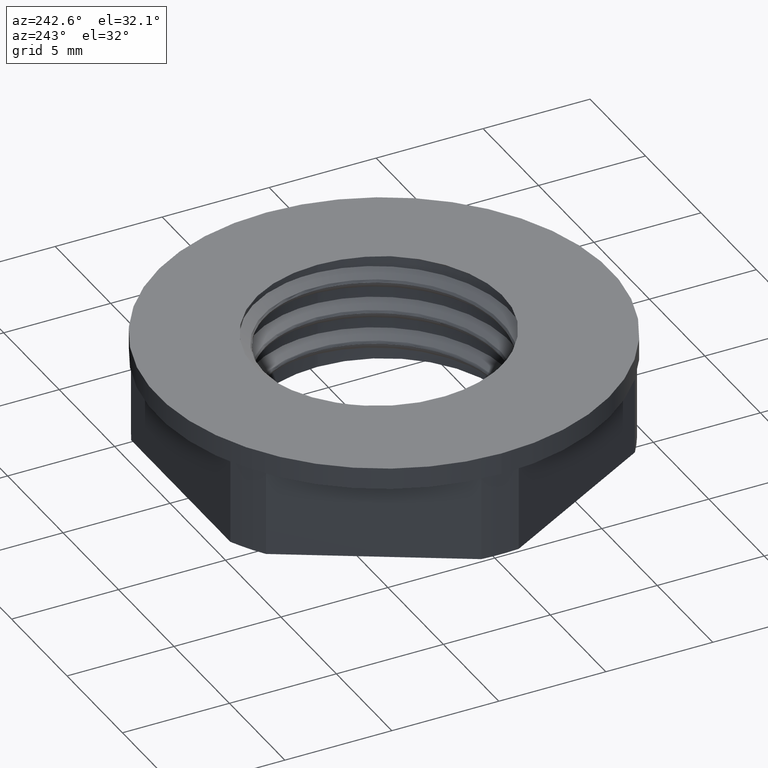
[diagram: clean part render]
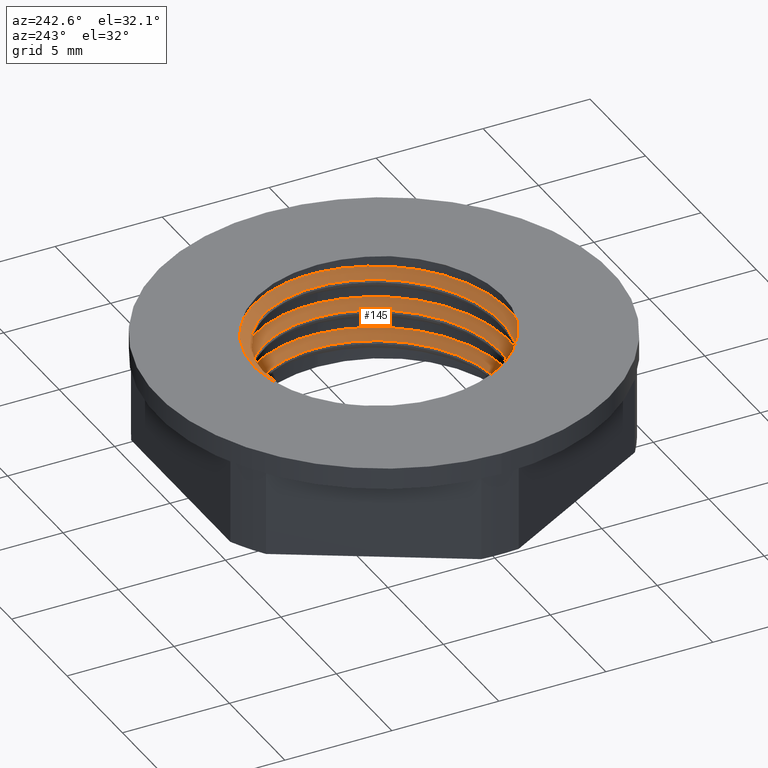
[diagram: same view with one face highlighted and labeled with its STEP entity id]
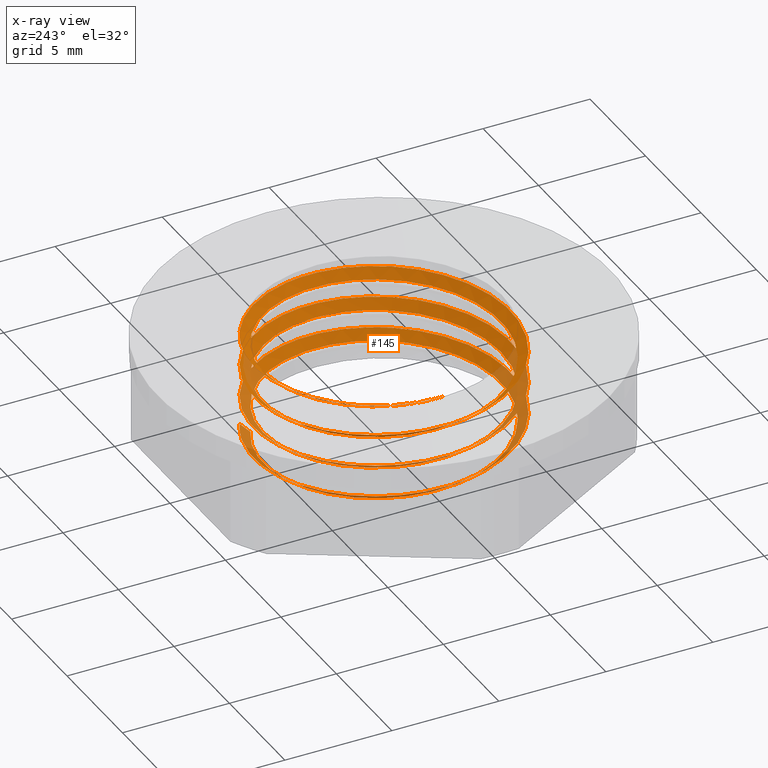
[diagram: x-ray of the same camera — body ghosted, the highlighted face saturated]
A machine part, auxiliary view. The second image highlights one B-rep face of the part: STEP entity #145.
The next image is the same camera in x-ray: the body ghosted, the highlighted face saturated — about 19% of this face is hidden behind the body in this view.
In plain terms, the highlighted face is a freeform B-spline surface patch.
Its self-contained STEP definition (entity closure, byte-faithful):
#70 = VECTOR ( 'NONE', #2163, 1000.000000000000100 ) ;
#145 = ADVANCED_FACE ( 'NONE', ( #1363 ), #2599, .F. ) ;
#156 = EDGE_CURVE ( 'NONE', #840, #837, #2605, .T. ) ;
#170 = EDGE_CURVE ( 'NONE', #834, #827, #2606, .T. ) ;
#179 = EDGE_CURVE ( 'NONE', #827, #824, #2610, .T. ) ;
#184 = EDGE_CURVE ( 'NONE', #883, #843, #1037, .T. ) ;
#185 = EDGE_CURVE ( 'NONE', #838, #831, #2600, .T. ) ;
#191 = EDGE_CURVE ( 'NONE', #837, #834, #2616, .T. ) ;
#193 = EDGE_CURVE ( 'NONE', #824, #883, #2160, .T. ) ;
#215 = EDGE_CURVE ( 'NONE', #831, #840, #2608, .T. ) ;
#217 = EDGE_CURVE ( 'NONE', #833, #893, #1036, .T. ) ;
#228 = EDGE_CURVE ( 'NONE', #893, #838, #2602, .T. ) ;
#235 = EDGE_CURVE ( 'NONE', #843, #833, #2594, .T. ) ;
#312 = EDGE_LOOP ( 'NONE', ( #894, #954, #935, #864, #876, #970, #915, #949, #950, #965, #940 ) ) ;
#824 = VERTEX_POINT ( 'NONE', #1223 ) ;
#827 = VERTEX_POINT ( 'NONE', #1267 ) ;
#831 = VERTEX_POINT ( 'NONE', #1240 ) ;
#833 = VERTEX_POINT ( 'NONE', #1274 ) ;
#834 = VERTEX_POINT ( 'NONE', #1232 ) ;
#837 = VERTEX_POINT ( 'NONE', #1269 ) ;
#838 = VERTEX_POINT ( 'NONE', #1255 ) ;
#840 = VERTEX_POINT ( 'NONE', #1225 ) ;
#843 = VERTEX_POINT ( 'NONE', #1271 ) ;
#864 = ORIENTED_EDGE ( 'NONE', *, *, #193, .F. ) ;
#876 = ORIENTED_EDGE ( 'NONE', *, *, #179, .F. ) ;
#883 = VERTEX_POINT ( 'NONE', #1262 ) ;
#893 = VERTEX_POINT ( 'NONE', #1292 ) ;
#894 = ORIENTED_EDGE ( 'NONE', *, *, #217, .F. ) ;
#915 = ORIENTED_EDGE ( 'NONE', *, *, #191, .F. ) ;
#935 = ORIENTED_EDGE ( 'NONE', *, *, #184, .F. ) ;
#940 = ORIENTED_EDGE ( 'NONE', *, *, #228, .F. ) ;
#949 = ORIENTED_EDGE ( 'NONE', *, *, #156, .F. ) ;
#950 = ORIENTED_EDGE ( 'NONE', *, *, #215, .F. ) ;
#954 = ORIENTED_EDGE ( 'NONE', *, *, #235, .F. ) ;
#965 = ORIENTED_EDGE ( 'NONE', *, *, #185, .F. ) ;
#970 = ORIENTED_EDGE ( 'NONE', *, *, #170, .F. ) ;
#1036 = B_SPLINE_CURVE_WITH_KNOTS ( 'NONE', 3,
 ( #2340, #2317, #2343, #2344, #2347, #2324, #2325, #2308, #2312, #2333, #2345, #2348, #2320, #2313, #2332, #2316, #2326, #2361, #2310, #2354, #2329, #2318, #2349, #2346 ),
 .UNSPECIFIED., .F., .F.,
 ( 4, 2, 2, 2, 2, 2, 2, 2, 2, 2, 2, 4 ),
 ( 0.0000000000000000000, 0.001129553514951776900, 0.001694330272427665700, 0.002259107029903553800, 0.003388660544855331400, 0.003953437302331219700, 0.004518214059807107600, 0.005647767574758880000, 0.006777321089710651400, 0.007342097847186538500, 0.007906874604662425500, 0.009036428119614197900 ),
 .UNSPECIFIED. ) ;
#1037 = B_SPLINE_CURVE_WITH_KNOTS ( 'NONE', 3,
 ( #2102, #2120, #2141, #2130 ),
 .UNSPECIFIED., .F., .F.,
 ( 4, 4 ),
 ( 5.276005131831191400E-047, 4.298832152000615600E-007 ),
 .UNSPECIFIED. ) ;
#1108 = CARTESIAN_POINT ( 'NONE',  ( -5.364382293212693200, -1.437245306775670500, 2.062482500777301100 ) ) ;
#1110 = CARTESIAN_POINT ( 'NONE',  ( 0.7845116428169338600, 5.959643699663614000, 0.09374275125636930000 ) ) ;
#1115 = CARTESIAN_POINT ( 'NONE',  ( -4.809476999057354300, 2.776905193758121300, 0.3749825007773035000 ) ) ;
#1116 = CARTESIAN_POINT ( 'NONE',  ( 3.659245206378451100, -4.769055794689133000, 1.031232500777302700 ) ) ;
#1117 = CARTESIAN_POINT ( 'NONE',  ( -4.769055794689130300, -3.659245206378452900, 2.156232500777300700 ) ) ;
#1120 = CARTESIAN_POINT ( 'NONE',  ( -2.776905193758121300, -4.809476999057354300, 2.249982500777301100 ) ) ;
#1121 = CARTESIAN_POINT ( 'NONE',  ( -0.7847545928271130200, -5.959708791736255200, 2.343732500777301100 ) ) ;
#1126 = CARTESIAN_POINT ( 'NONE',  ( 0.7847545928271111300, 5.959708791736255200, 1.593732500777301600 ) ) ;
#1127 = CARTESIAN_POINT ( 'NONE',  ( 1.437245306775670100, -5.364382293212693200, 2.437482500777300700 ) ) ;
#1128 = CARTESIAN_POINT ( 'NONE',  ( 3.659245206378451100, -4.769055794689133000, 2.531232500777300200 ) ) ;
#1129 = CARTESIAN_POINT ( 'NONE',  ( 4.769055794689133000, 3.659245206378450600, 1.406232500777302000 ) ) ;
#1131 = CARTESIAN_POINT ( 'NONE',  ( 4.809476999057353400, -2.776905193758121700, 2.624982500777300200 ) ) ;
#1132 = CARTESIAN_POINT ( 'NONE',  ( 5.959708791736255200, -0.7847545928271099100, 2.718732500777300700 ) ) ;
#1138 = CARTESIAN_POINT ( 'NONE',  ( -5.364382293212693200, -1.437245306775670500, 0.5624825007773033300 ) ) ;
#1140 = CARTESIAN_POINT ( 'NONE',  ( 4.809476999057353400, -2.776905193758121700, 1.124982500777302400 ) ) ;
#1141 = CARTESIAN_POINT ( 'NONE',  ( 5.364382293212693200, 1.437245306775669600, 1.312482500777302200 ) ) ;
#1143 = CARTESIAN_POINT ( 'NONE',  ( 2.776905193758120800, 4.809476999057354300, 1.499982500777302000 ) ) ;
#1145 = CARTESIAN_POINT ( 'NONE',  ( 2.776533339817862400, 4.809691681642640000, 0.0000000000000000000 ) ) ;
#1148 = CARTESIAN_POINT ( 'NONE',  ( -1.437245306775670500, 5.364382293212693200, 0.1874825007773038000 ) ) ;
#1151 = CARTESIAN_POINT ( 'NONE',  ( 1.437245306775670100, -5.364382293212693200, 0.9374825007773027700 ) ) ;
#1153 = CARTESIAN_POINT ( 'NONE',  ( -1.437245306775670500, 5.364382293212693200, 1.687482500777301800 ) ) ;
#1154 = CARTESIAN_POINT ( 'NONE',  ( -3.659245206378452900, 4.769055794689130300, 1.781232500777301800 ) ) ;
#1156 = CARTESIAN_POINT ( 'NONE',  ( -4.809476999057354300, 2.776905193758121300, 1.874982500777301300 ) ) ;
#1157 = CARTESIAN_POINT ( 'NONE',  ( -3.659245206378452900, 4.769055794689130300, 0.2812325007773036600 ) ) ;
#1159 = CARTESIAN_POINT ( 'NONE',  ( -5.959708791736255200, 0.7847545928271116900, 1.968732500777301600 ) ) ;
#1160 = CARTESIAN_POINT ( 'NONE',  ( -4.769055794689130300, -3.659245206378452900, 0.6562325007773032200 ) ) ;
#1161 = CARTESIAN_POINT ( 'NONE',  ( -2.776905193758121300, -4.809476999057354300, 0.7499825007773030000 ) ) ;
#1162 = CARTESIAN_POINT ( 'NONE',  ( 5.959708791736255200, -0.7847545928271099100, 1.218732500777302400 ) ) ;
#1163 = CARTESIAN_POINT ( 'NONE',  ( -5.959708791736255200, 0.7847545928271116900, 0.4687325007773034400 ) ) ;
#1164 = CARTESIAN_POINT ( 'NONE',  ( -0.7847545928271130200, -5.959708791736255200, 0.8437325007773027700 ) ) ;
#1166 = CARTESIAN_POINT ( 'NONE',  ( 4.809476999057353400, -2.776905193758121700, 4.124982500777298000 ) ) ;
#1171 = CARTESIAN_POINT ( 'NONE',  ( 4.769055794689133000, 3.659245206378450600, 4.406232500777298000 ) ) ;
#1173 = CARTESIAN_POINT ( 'NONE',  ( 2.776905193758120800, 4.809476999057354300, 2.999982500777299800 ) ) ;
#1174 = CARTESIAN_POINT ( 'NONE',  ( -0.7847545928271130200, -5.959708791736255200, 3.843732500777298900 ) ) ;
#1175 = CARTESIAN_POINT ( 'NONE',  ( -4.809476999057354300, 2.776905193758121300, 3.374982500777299300 ) ) ;
#1178 = CARTESIAN_POINT ( 'NONE',  ( 2.776905193758120800, 4.809476999057354300, 4.499982500777298000 ) ) ;
#1182 = CARTESIAN_POINT ( 'NONE',  ( 1.437245306775670100, -5.364382293212693200, 3.937482500777298900 ) ) ;
#1183 = CARTESIAN_POINT ( 'NONE',  ( -5.553557827898206500, 0.01633743471645050400, 5.000000000000000900 ) ) ;
#1184 = CARTESIAN_POINT ( 'NONE',  ( -1.437245306775670500, 5.364382293212693200, 3.187482500777299800 ) ) ;
#1185 = CARTESIAN_POINT ( 'NONE',  ( 5.364382293212693200, 1.437245306775669600, 4.312482500777297100 ) ) ;
#1186 = CARTESIAN_POINT ( 'NONE',  ( 4.769055794689133000, 3.659245206378450600, 2.906232500777299800 ) ) ;
#1188 = CARTESIAN_POINT ( 'NONE',  ( 0.7847545928271111300, 5.959708791736255200, 3.093732500777299300 ) ) ;
#1189 = CARTESIAN_POINT ( 'NONE',  ( -5.549205763440566500, 1.495727685127602700, 4.935274323784042000 ) ) ;
#1191 = CARTESIAN_POINT ( 'NONE',  ( -3.659245206378452900, 4.769055794689130300, 3.281232500777299800 ) ) ;
#1192 = CARTESIAN_POINT ( 'NONE',  ( -5.364382293212693200, -1.437245306775670500, 3.562482500777298900 ) ) ;
#1193 = CARTESIAN_POINT ( 'NONE',  ( -4.769055794689130300, -3.659245206378452900, 3.656232500777298900 ) ) ;
#1194 = CARTESIAN_POINT ( 'NONE',  ( -4.809476999057354300, 2.776905193758121300, 4.874982500777297100 ) ) ;
#1197 = CARTESIAN_POINT ( 'NONE',  ( -5.959708791736255200, 0.7847545928271116900, 3.468732500777299800 ) ) ;
#1202 = CARTESIAN_POINT ( 'NONE',  ( 0.7847545928271111300, 5.959708791736255200, 4.593732500777298000 ) ) ;
#1204 = CARTESIAN_POINT ( 'NONE',  ( -1.437245306775670500, 5.364382293212693200, 4.687482500777298000 ) ) ;
#1207 = CARTESIAN_POINT ( 'NONE',  ( -2.776905193758121300, -4.809476999057354300, 3.749982500777298900 ) ) ;
#1211 = CARTESIAN_POINT ( 'NONE',  ( 5.364382293212693200, 1.437245306775669600, 2.812482500777300200 ) ) ;
#1212 = CARTESIAN_POINT ( 'NONE',  ( 5.959708791736255200, -0.7847545928271099100, 4.218732500777298000 ) ) ;
#1214 = CARTESIAN_POINT ( 'NONE',  ( 3.659245206378451100, -4.769055794689133000, 4.031232500777298000 ) ) ;
#1215 = CARTESIAN_POINT ( 'NONE',  ( -3.659245206378452900, 4.769055794689130300, 4.781232500777297100 ) ) ;
#1223 = CARTESIAN_POINT ( 'NONE',  ( 3.000123449500724500, 5.196081147148867700, 0.3745717986213496500 ) ) ;
#1225 = CARTESIAN_POINT ( 'NONE',  ( 6.000000000000001800, -3.703513641187310800E-015, 3.125303948206179100 ) ) ;
#1232 = CARTESIAN_POINT ( 'NONE',  ( 6.000000000000000900, -1.122276860965852100E-016, 1.625303948206181300 ) ) ;
#1240 = CARTESIAN_POINT ( 'NONE',  ( -6.000000000000001800, -3.254602896800970600E-015, 3.875303948206178600 ) ) ;
#1255 = CARTESIAN_POINT ( 'NONE',  ( 6.000000000000000900, -1.122276860965852100E-016, 4.625303948206176400 ) ) ;
#1262 = CARTESIAN_POINT ( 'NONE',  ( 2.776915621567964000, 4.809495059562877400, 1.084202172485504400E-016 ) ) ;
#1267 = CARTESIAN_POINT ( 'NONE',  ( -6.000000000000000900, 3.366830582897556400E-016, 0.8753039482061825100 ) ) ;
#1269 = CARTESIAN_POINT ( 'NONE',  ( -6.000000000000001800, 3.815741327283896400E-015, 2.375303948206180400 ) ) ;
#1271 = CARTESIAN_POINT ( 'NONE',  ( 2.776533339817862400, 4.809691681642640000, 0.0000000000000000000 ) ) ;
#1274 = CARTESIAN_POINT ( 'NONE',  ( -5.553557827898206500, 0.01633743471645050400, 5.000000000000000900 ) ) ;
#1292 = CARTESIAN_POINT ( 'NONE',  ( 0.007507861181075936600, 5.999995302666538200, 5.000000000000000000 ) ) ;
#1337 = CARTESIAN_POINT ( 'NONE',  ( 3.119555498731400300, 5.402932175054450800, 2.074994328188025400 ) ) ;
#1338 = CARTESIAN_POINT ( 'NONE',  ( -6.695094371204562300, 0.8815877152418814000, 1.043744328188027200 ) ) ;
#1339 = CARTESIAN_POINT ( 'NONE',  ( 0.8815877152418809500, 6.695094371204562300, 3.668744328188023700 ) ) ;
#1343 = CARTESIAN_POINT ( 'NONE',  ( 3.119555498731400300, 5.402932175054450800, 0.5749943281880278700 ) ) ;
#1345 = CARTESIAN_POINT ( 'NONE',  ( 0.8815877152418809500, 6.695094371204562300, 2.168744328188025400 ) ) ;
#1348 = CARTESIAN_POINT ( 'NONE',  ( 5.357523282220921800, 4.110769978904337500, 1.981244328188025900 ) ) ;
#1350 = CARTESIAN_POINT ( 'NONE',  ( -0.8815877152418832900, -6.695094371204563200, 2.918744328188025000 ) ) ;
#1351 = CARTESIAN_POINT ( 'NONE',  ( -5.402932175054450800, 3.119555498731400700, 2.449994328188025000 ) ) ;
#1352 = CARTESIAN_POINT ( 'NONE',  ( 1.614591131831228900, -6.026308826712741200, 3.012494328188024500 ) ) ;
#1355 = CARTESIAN_POINT ( 'NONE',  ( -1.614591131831228900, 6.026308826712741200, 0.7624943281880276500 ) ) ;
#1356 = CARTESIAN_POINT ( 'NONE',  ( 6.026308826712741200, 1.614591131831228000, 1.887494328188026100 ) ) ;
#1357 = CARTESIAN_POINT ( 'NONE',  ( -5.402932175054450800, 3.119555498731400700, 0.9499943281880273100 ) ) ;
#1362 = CARTESIAN_POINT ( 'NONE',  ( -5.357523282220919100, -4.110769978904339300, 1.231244328188027000 ) ) ;
#1363 = FACE_OUTER_BOUND ( 'NONE', #312, .T. ) ;
#1364 = CARTESIAN_POINT ( 'NONE',  ( 0.8815877152418809500, 6.695094371204562300, 0.6687443281880278700 ) ) ;
#1365 = CARTESIAN_POINT ( 'NONE',  ( -6.026308826712741200, -1.614591131831228900, 1.137494328188027000 ) ) ;
#1366 = CARTESIAN_POINT ( 'NONE',  ( -3.119555498731401100, -5.402932175054450800, 1.324994328188026800 ) ) ;
#1367 = CARTESIAN_POINT ( 'NONE',  ( 6.000000000000000900, 0.7898424761968219100, 4.657277292087394800 ) ) ;
#1368 = CARTESIAN_POINT ( 'NONE',  ( -0.8815877152418832900, -6.695094371204563200, 1.418744328188027000 ) ) ;
#1369 = CARTESIAN_POINT ( 'NONE',  ( 1.614591131831228900, -6.026308826712741200, 1.512494328188026500 ) ) ;
#1370 = CARTESIAN_POINT ( 'NONE',  ( 5.402932175054449900, -3.119555498731401100, 1.699994328188026300 ) ) ;
#1371 = CARTESIAN_POINT ( 'NONE',  ( -1.614591131831228900, 6.026308826712741200, 2.262494328188025900 ) ) ;
#1373 = CARTESIAN_POINT ( 'NONE',  ( 4.110769978904338400, -5.357523282220920900, 3.106244328188024500 ) ) ;
#1374 = CARTESIAN_POINT ( 'NONE',  ( -4.110769978904339300, 5.357523282220919100, 2.356244328188025400 ) ) ;
#1375 = CARTESIAN_POINT ( 'NONE',  ( 5.402932175054449900, -3.119555498731401100, 3.199994328188024100 ) ) ;
#1376 = CARTESIAN_POINT ( 'NONE',  ( -6.026308826712741200, -1.614591131831228900, 2.637494328188025000 ) ) ;
#1377 = CARTESIAN_POINT ( 'NONE',  ( 6.695094371204562300, -0.8815877152418797300, 3.293744328188024500 ) ) ;
#1378 = CARTESIAN_POINT ( 'NONE',  ( 6.026308826712741200, 1.614591131831228000, 3.387494328188024100 ) ) ;
#1379 = CARTESIAN_POINT ( 'NONE',  ( 4.110769978904338400, -5.357523282220920900, 1.606244328188026300 ) ) ;
#1381 = CARTESIAN_POINT ( 'NONE',  ( -5.357523282220919100, -4.110769978904339300, 2.731244328188024500 ) ) ;
#1387 = CARTESIAN_POINT ( 'NONE',  ( -4.110769978904339300, 5.357523282220919100, 0.8562443281880274300 ) ) ;
#1388 = CARTESIAN_POINT ( 'NONE',  ( 6.695094371204562300, -0.8815877152418797300, 1.793744328188026300 ) ) ;
#1389 = CARTESIAN_POINT ( 'NONE',  ( -6.695094371204562300, 0.8815877152418814000, 2.543744328188024500 ) ) ;
#1390 = CARTESIAN_POINT ( 'NONE',  ( 5.357523282220921800, 4.110769978904337500, 3.481244328188023200 ) ) ;
#1391 = CARTESIAN_POINT ( 'NONE',  ( 3.119555498731400300, 5.402932175054450800, 3.574994328188023200 ) ) ;
#1392 = CARTESIAN_POINT ( 'NONE',  ( -3.119555498731401100, -5.402932175054450800, 2.824994328188024500 ) ) ;
#1393 = CARTESIAN_POINT ( 'NONE',  ( -1.614591131831228900, 6.026308826712741200, 6.762494328188019200 ) ) ;
#1394 = CARTESIAN_POINT ( 'NONE',  ( 4.809476999057353400, -2.776905193758121700, 1.124982500777302400 ) ) ;
#1395 = CARTESIAN_POINT ( 'NONE',  ( -4.110769978904339300, 5.357523282220919100, 3.856244328188022800 ) ) ;
#1396 = CARTESIAN_POINT ( 'NONE',  ( 5.959708791736254300, -0.7847545928271100200, 1.218732500777302200 ) ) ;
#1397 = CARTESIAN_POINT ( 'NONE',  ( 6.026308826712741200, 1.614591131831228000, 4.887494328188021000 ) ) ;
#1398 = CARTESIAN_POINT ( 'NONE',  ( 5.402932175054449900, -3.119555498731401100, 7.699994328188017400 ) ) ;
#1399 = CARTESIAN_POINT ( 'NONE',  ( 5.364382293212693200, 1.437245306775669600, 1.312482500777302200 ) ) ;
#1400 = CARTESIAN_POINT ( 'NONE',  ( 4.769055794689133000, 3.659245206378450200, 1.406232500777302200 ) ) ;
#1401 = CARTESIAN_POINT ( 'NONE',  ( 2.776905193758120800, 4.809476999057354300, 1.499982500777302000 ) ) ;
#1402 = CARTESIAN_POINT ( 'NONE',  ( 6.026308826712741200, 1.614591131831228000, 6.387494328188019200 ) ) ;
#1403 = CARTESIAN_POINT ( 'NONE',  ( -5.402932175054450800, 3.119555498731400700, 6.949994328188018300 ) ) ;
#1404 = CARTESIAN_POINT ( 'NONE',  ( -6.026308826712741200, -1.614591131831228900, 7.137494328188017400 ) ) ;
#1405 = CARTESIAN_POINT ( 'NONE',  ( 5.357523282220921800, 4.110769978904337500, 6.481244328188018300 ) ) ;
#1406 = CARTESIAN_POINT ( 'NONE',  ( 3.119555498731400300, 5.402932175054450800, 6.574994328188019200 ) ) ;
#1407 = CARTESIAN_POINT ( 'NONE',  ( -5.357523282220919100, -4.110769978904339300, 7.231244328188018300 ) ) ;
#1408 = CARTESIAN_POINT ( 'NONE',  ( -3.119555498731401100, -5.402932175054450800, 5.824994328188020100 ) ) ;
#1409 = CARTESIAN_POINT ( 'NONE',  ( 4.110769978904338400, -5.357523282220920900, 7.606244328188017400 ) ) ;
#1410 = CARTESIAN_POINT ( 'NONE',  ( 3.119555498731400300, 5.402932175054450800, 8.074994328188017400 ) ) ;
#1411 = CARTESIAN_POINT ( 'NONE',  ( 2.776905193758120800, 4.809476999057354300, -1.749922269592462100E-005 ) ) ;
#1412 = CARTESIAN_POINT ( 'NONE',  ( -3.119555498731401100, -5.402932175054450800, 4.324994328188021900 ) ) ;
#1413 = CARTESIAN_POINT ( 'NONE',  ( -0.8815877152418832900, -6.695094371204563200, 7.418744328188017400 ) ) ;
#1414 = CARTESIAN_POINT ( 'NONE',  ( -4.809476999057354300, 2.776905193758121300, 0.3749825007773035000 ) ) ;
#1415 = CARTESIAN_POINT ( 'NONE',  ( -0.7847545928271130200, -5.959708791736255200, 0.8437325007773027700 ) ) ;
#1416 = CARTESIAN_POINT ( 'NONE',  ( 3.659245206378450600, -4.769055794689132100, 1.031232500777302700 ) ) ;
#1417 = CARTESIAN_POINT ( 'NONE',  ( -5.402932175054450800, 3.119555498731400700, 3.949994328188022800 ) ) ;
#1418 = CARTESIAN_POINT ( 'NONE',  ( -0.8815877152418832900, -6.695094371204563200, 4.418744328188023700 ) ) ;
#1419 = CARTESIAN_POINT ( 'NONE',  ( -5.357523282220919100, -4.110769978904339300, 5.731244328188020100 ) ) ;
#1420 = CARTESIAN_POINT ( 'NONE',  ( -5.402932175054450800, 3.119555498731400700, 5.449994328188021000 ) ) ;
#1421 = CARTESIAN_POINT ( 'NONE',  ( 0.8815877152418809500, 6.695094371204562300, 6.668744328188019200 ) ) ;
#1422 = CARTESIAN_POINT ( 'NONE',  ( -6.695094371204562300, 0.8815877152418814000, 7.043744328188018300 ) ) ;
#1423 = CARTESIAN_POINT ( 'NONE',  ( 0.7847545928271111300, 5.959708791736255200, 0.09373250077730395400 ) ) ;
#1424 = CARTESIAN_POINT ( 'NONE',  ( 5.357523282220921800, 4.110769978904337500, 4.981244328188021900 ) ) ;
#1425 = CARTESIAN_POINT ( 'NONE',  ( -1.437245306775670500, 5.364382293212693200, 0.1874825007773038000 ) ) ;
#1426 = CARTESIAN_POINT ( 'NONE',  ( 1.437245306775670100, -5.364382293212693200, 0.9374825007773027700 ) ) ;
#1427 = CARTESIAN_POINT ( 'NONE',  ( -3.659245206378452900, 4.769055794689130300, 0.2812325007773036600 ) ) ;
#1428 = CARTESIAN_POINT ( 'NONE',  ( 1.614591131831228900, -6.026308826712741200, 4.512494328188022800 ) ) ;
#1429 = CARTESIAN_POINT ( 'NONE',  ( -6.026308826712741200, -1.614591131831228900, 4.137494328188022800 ) ) ;
#1430 = CARTESIAN_POINT ( 'NONE',  ( -6.026308826712741200, -1.614591131831228900, 5.637494328188020100 ) ) ;
#1431 = CARTESIAN_POINT ( 'NONE',  ( -5.357523282220919100, -4.110769978904339300, 4.231244328188023700 ) ) ;
#1432 = CARTESIAN_POINT ( 'NONE',  ( -0.8815877152418832900, -6.695094371204563200, 5.918744328188020100 ) ) ;
#1433 = CARTESIAN_POINT ( 'NONE',  ( 1.614591131831228900, -6.026308826712741200, 6.012494328188020100 ) ) ;
#1434 = CARTESIAN_POINT ( 'NONE',  ( 3.119555498731400300, 5.402932175054450800, 5.074994328188021000 ) ) ;
#1435 = CARTESIAN_POINT ( 'NONE',  ( 4.110769978904338400, -5.357523282220920900, 4.606244328188021900 ) ) ;
#1436 = CARTESIAN_POINT ( 'NONE',  ( 0.8815877152418809500, 6.695094371204562300, 5.168744328188021900 ) ) ;
#1437 = CARTESIAN_POINT ( 'NONE',  ( 6.695094371204562300, -0.8815877152418797300, 6.293744328188019200 ) ) ;
#1438 = CARTESIAN_POINT ( 'NONE',  ( -4.110769978904339300, 5.357523282220919100, 6.856244328188018300 ) ) ;
#1439 = CARTESIAN_POINT ( 'NONE',  ( -6.695094371204562300, 0.8815877152418814000, 5.543744328188021000 ) ) ;
#1440 = CARTESIAN_POINT ( 'NONE',  ( 1.614591131831228900, -6.026308826712741200, 7.512494328188018300 ) ) ;
#1441 = CARTESIAN_POINT ( 'NONE',  ( -5.959708791736254300, 0.7847545928271115700, 0.4687325007773034400 ) ) ;
#1442 = CARTESIAN_POINT ( 'NONE',  ( 6.026308826712741200, 1.614591131831228000, 7.887494328188016500 ) ) ;
#1443 = CARTESIAN_POINT ( 'NONE',  ( -5.364382293212693200, -1.437245306775670500, 0.5624825007773033300 ) ) ;
#1444 = CARTESIAN_POINT ( 'NONE',  ( 6.695094371204562300, -0.8815877152418797300, 4.793744328188021900 ) ) ;
#1445 = CARTESIAN_POINT ( 'NONE',  ( -1.614591131831228900, 6.026308826712741200, 5.262494328188021000 ) ) ;
#1446 = CARTESIAN_POINT ( 'NONE',  ( -1.614591131831228900, 6.026308826712741200, 3.762494328188023700 ) ) ;
#1447 = CARTESIAN_POINT ( 'NONE',  ( -4.110769978904339300, 5.357523282220919100, 5.356244328188020100 ) ) ;
#1448 = CARTESIAN_POINT ( 'NONE',  ( -6.695094371204562300, 0.8815877152418814000, 4.043744328188022800 ) ) ;
#1449 = CARTESIAN_POINT ( 'NONE',  ( 5.357523282220921800, 4.110769978904337500, 7.981244328188017400 ) ) ;
#1450 = CARTESIAN_POINT ( 'NONE',  ( -4.769055794689130300, -3.659245206378452900, 0.6562325007773032200 ) ) ;
#1451 = CARTESIAN_POINT ( 'NONE',  ( 5.402932175054449900, -3.119555498731401100, 6.199994328188019200 ) ) ;
#1452 = CARTESIAN_POINT ( 'NONE',  ( 5.402932175054449900, -3.119555498731401100, 4.699994328188021900 ) ) ;
#1453 = CARTESIAN_POINT ( 'NONE',  ( 4.110769978904338400, -5.357523282220920900, 6.106244328188020100 ) ) ;
#1454 = CARTESIAN_POINT ( 'NONE',  ( 6.695094371204562300, -0.8815877152418797300, 7.793744328188018300 ) ) ;
#1455 = CARTESIAN_POINT ( 'NONE',  ( -2.776905193758121300, -4.809476999057354300, 0.7499825007773030000 ) ) ;
#1456 = CARTESIAN_POINT ( 'NONE',  ( -3.119555498731401100, -5.402932175054450800, 7.324994328188018300 ) ) ;
#1457 = CARTESIAN_POINT ( 'NONE',  ( 4.769055794689133000, 3.659245206378450200, 4.406232500777297100 ) ) ;
#1458 = CARTESIAN_POINT ( 'NONE',  ( 5.959708791736254300, -0.7847545928271100200, 7.218732500777295300 ) ) ;
#1459 = CARTESIAN_POINT ( 'NONE',  ( -1.437245306775670500, 5.364382293212693200, 1.687482500777301800 ) ) ;
#1460 = CARTESIAN_POINT ( 'NONE',  ( 5.364382293212693200, 1.437245306775669600, 7.312482500777293600 ) ) ;
#1461 = CARTESIAN_POINT ( 'NONE',  ( 3.659245206378450600, -4.769055794689132100, 2.531232500777300200 ) ) ;
#1462 = CARTESIAN_POINT ( 'NONE',  ( 0.7847545928271111300, 5.959708791736255200, 1.593732500777301800 ) ) ;
#1463 = CARTESIAN_POINT ( 'NONE',  ( -0.7847545928271130200, -5.959708791736255200, 5.343732500777297100 ) ) ;
#1464 = CARTESIAN_POINT ( 'NONE',  ( 4.769055794689133000, 3.659245206378450200, 7.406232500777292700 ) ) ;
#1465 = CARTESIAN_POINT ( 'NONE',  ( 2.776905193758120800, 4.809476999057354300, 7.499982500777293600 ) ) ;
#1466 = CARTESIAN_POINT ( 'NONE',  ( 3.659245206378450600, -4.769055794689132100, 4.031232500777298000 ) ) ;
#1467 = CARTESIAN_POINT ( 'NONE',  ( 0.7847545928271111300, 5.959708791736255200, 4.593732500777297100 ) ) ;
#1468 = CARTESIAN_POINT ( 'NONE',  ( -3.659245206378452900, 4.769055794689130300, 4.781232500777297100 ) ) ;
#1469 = CARTESIAN_POINT ( 'NONE',  ( 4.809476999057353400, -2.776905193758121700, 4.124982500777298000 ) ) ;
#1470 = CARTESIAN_POINT ( 'NONE',  ( 5.959708791736254300, -0.7847545928271100200, 4.218732500777298000 ) ) ;
#1471 = CARTESIAN_POINT ( 'NONE',  ( -4.809476999057354300, 2.776905193758121300, 4.874982500777297100 ) ) ;
#1472 = CARTESIAN_POINT ( 'NONE',  ( -5.959708791736254300, 0.7847545928271115700, 3.468732500777300200 ) ) ;
#1473 = CARTESIAN_POINT ( 'NONE',  ( -2.776905193758121300, -4.809476999057354300, 5.249982500777296200 ) ) ;
#1474 = CARTESIAN_POINT ( 'NONE',  ( 5.959708791736254300, -0.7847545928271100200, 5.718732500777295300 ) ) ;
#1475 = CARTESIAN_POINT ( 'NONE',  ( 0.7847545928271111300, 5.959708791736255200, 6.093732500777295300 ) ) ;
#1476 = CARTESIAN_POINT ( 'NONE',  ( -5.959708791736254300, 0.7847545928271115700, 1.968732500777301600 ) ) ;
#1477 = CARTESIAN_POINT ( 'NONE',  ( -5.364382293212693200, -1.437245306775670500, 5.062482500777296200 ) ) ;
#1478 = CARTESIAN_POINT ( 'NONE',  ( -3.659245206378452900, 4.769055794689130300, 1.781232500777301800 ) ) ;
#1479 = CARTESIAN_POINT ( 'NONE',  ( -5.959708791736254300, 0.7847545928271115700, 6.468732500777296200 ) ) ;
#1480 = CARTESIAN_POINT ( 'NONE',  ( 1.437245306775670100, -5.364382293212693200, 6.937482500777294400 ) ) ;
#1481 = CARTESIAN_POINT ( 'NONE',  ( 4.809476999057353400, -2.776905193758121700, 7.124982500777293600 ) ) ;
#1482 = CARTESIAN_POINT ( 'NONE',  ( -5.364382293212693200, -1.437245306775670500, 2.062482500777301100 ) ) ;
#1483 = CARTESIAN_POINT ( 'NONE',  ( -4.809476999057354300, 2.776905193758121300, 3.374982500777299300 ) ) ;
#1484 = CARTESIAN_POINT ( 'NONE',  ( 0.7847545928271111300, 5.959708791736255200, 3.093732500777299300 ) ) ;
#1485 = CARTESIAN_POINT ( 'NONE',  ( 5.364382293212693200, 1.437245306775669600, 4.312482500777297100 ) ) ;
#1486 = CARTESIAN_POINT ( 'NONE',  ( -1.437245306775670500, 5.364382293212693200, 4.687482500777298000 ) ) ;
#1487 = CARTESIAN_POINT ( 'NONE',  ( 2.776905193758120800, 4.809476999057354300, 5.999982500777295300 ) ) ;
#1488 = CARTESIAN_POINT ( 'NONE',  ( 4.809476999057353400, -2.776905193758121700, 2.624982500777300200 ) ) ;
#1489 = CARTESIAN_POINT ( 'NONE',  ( -1.437245306775670500, 5.364382293212693200, 6.187482500777295300 ) ) ;
#1490 = CARTESIAN_POINT ( 'NONE',  ( -3.659245206378452900, 4.769055794689130300, 6.281232500777297100 ) ) ;
#1491 = CARTESIAN_POINT ( 'NONE',  ( -4.809476999057354300, 2.776905193758121300, 6.374982500777295300 ) ) ;
#1492 = CARTESIAN_POINT ( 'NONE',  ( -4.769055794689130300, -3.659245206378452900, 2.156232500777300700 ) ) ;
#1493 = CARTESIAN_POINT ( 'NONE',  ( -4.769055794689130300, -3.659245206378452900, 6.656232500777295300 ) ) ;
#1494 = CARTESIAN_POINT ( 'NONE',  ( -3.659245206378452900, 4.769055794689130300, 3.281232500777299800 ) ) ;
#1495 = CARTESIAN_POINT ( 'NONE',  ( -5.364382293212693200, -1.437245306775670500, 3.562482500777298900 ) ) ;
#1496 = CARTESIAN_POINT ( 'NONE',  ( -4.769055794689130300, -3.659245206378452900, 3.656232500777298400 ) ) ;
#1497 = CARTESIAN_POINT ( 'NONE',  ( 1.437245306775670100, -5.364382293212693200, 3.937482500777298900 ) ) ;
#1498 = CARTESIAN_POINT ( 'NONE',  ( 5.959708791736254300, -0.7847545928271100200, 2.718732500777300200 ) ) ;
#1499 = CARTESIAN_POINT ( 'NONE',  ( -2.776905193758121300, -4.809476999057354300, 2.249982500777301100 ) ) ;
#1500 = CARTESIAN_POINT ( 'NONE',  ( 5.364382293212693200, 1.437245306775669600, 2.812482500777300200 ) ) ;
#1501 = CARTESIAN_POINT ( 'NONE',  ( 2.776905193758120800, 4.809476999057354300, 4.499982500777298000 ) ) ;
#1502 = CARTESIAN_POINT ( 'NONE',  ( -4.769055794689130300, -3.659245206378452900, 5.156232500777296200 ) ) ;
#1503 = CARTESIAN_POINT ( 'NONE',  ( -1.437245306775670500, 5.364382293212693200, 3.187482500777299800 ) ) ;
#1504 = CARTESIAN_POINT ( 'NONE',  ( -5.364382293212693200, -1.437245306775670500, 6.562482500777294400 ) ) ;
#1505 = CARTESIAN_POINT ( 'NONE',  ( -2.776905193758121300, -4.809476999057354300, 6.749982500777294400 ) ) ;
#1506 = CARTESIAN_POINT ( 'NONE',  ( 3.659245206378450600, -4.769055794689132100, 5.531232500777295300 ) ) ;
#1507 = CARTESIAN_POINT ( 'NONE',  ( -0.7847545928271130200, -5.959708791736255200, 6.843732500777296200 ) ) ;
#1508 = CARTESIAN_POINT ( 'NONE',  ( 1.437245306775670100, -5.364382293212693200, 2.437482500777300700 ) ) ;
#1509 = CARTESIAN_POINT ( 'NONE',  ( 4.769055794689133000, 3.659245206378450200, 2.906232500777299800 ) ) ;
#1510 = CARTESIAN_POINT ( 'NONE',  ( 4.809476999057353400, -2.776905193758121700, 5.624982500777296200 ) ) ;
#1511 = CARTESIAN_POINT ( 'NONE',  ( 2.776905193758120800, 4.809476999057354300, 2.999982500777299800 ) ) ;
#1512 = CARTESIAN_POINT ( 'NONE',  ( 5.364382293212693200, 1.437245306775669600, 5.812482500777295300 ) ) ;
#1513 = CARTESIAN_POINT ( 'NONE',  ( 4.769055794689133000, 3.659245206378450200, 5.906232500777295300 ) ) ;
#1514 = CARTESIAN_POINT ( 'NONE',  ( 3.659245206378450600, -4.769055794689132100, 7.031232500777295300 ) ) ;
#1515 = CARTESIAN_POINT ( 'NONE',  ( -0.7847545928271130200, -5.959708791736255200, 3.843732500777298900 ) ) ;
#1516 = CARTESIAN_POINT ( 'NONE',  ( -0.7847545928271130200, -5.959708791736255200, 2.343732500777301100 ) ) ;
#1517 = CARTESIAN_POINT ( 'NONE',  ( -2.776905193758121300, -4.809476999057354300, 3.749982500777298900 ) ) ;
#1518 = CARTESIAN_POINT ( 'NONE',  ( -4.809476999057354300, 2.776905193758121300, 1.874982500777301300 ) ) ;
#1519 = CARTESIAN_POINT ( 'NONE',  ( 1.437245306775670100, -5.364382293212693200, 5.437482500777297100 ) ) ;
#1520 = CARTESIAN_POINT ( 'NONE',  ( -5.959708791736254300, 0.7847545928271115700, 4.968732500777297100 ) ) ;
#1573 = CARTESIAN_POINT ( 'NONE',  ( 6.000000000000000900, -1.122276860965852100E-016, 4.625303948206176400 ) ) ;
#1581 = CARTESIAN_POINT ( 'NONE',  ( -0.8478361671605156900, -6.438772968725622500, 2.718321798621347300 ) ) ;
#1587 = CARTESIAN_POINT ( 'NONE',  ( -6.000000000000000000, -0.7898424761968253500, 2.407277292087398400 ) ) ;
#1588 = CARTESIAN_POINT ( 'NONE',  ( -6.000000000000001800, 3.815741327283896400E-015, 2.375303948206180400 ) ) ;
#1600 = CARTESIAN_POINT ( 'NONE',  ( 5.196081147148866800, -3.000123449500725800, 2.999571798621345900 ) ) ;
#1601 = CARTESIAN_POINT ( 'NONE',  ( 6.000000000000001800, -3.703513641187310800E-015, 3.125303948206179100 ) ) ;
#1602 = CARTESIAN_POINT ( 'NONE',  ( 5.999999999999997300, -1.607771546170722900, 3.060220296620766300 ) ) ;
#1603 = CARTESIAN_POINT ( 'NONE',  ( 1.552776579205799300, -5.795591850283278400, 2.812071798621346400 ) ) ;
#1604 = CARTESIAN_POINT ( 'NONE',  ( -3.000123449500725800, -5.196081147148867700, 2.624571798621346400 ) ) ;
#1605 = CARTESIAN_POINT ( 'NONE',  ( 3.953389325572111500, -5.152410731840936900, 2.905821798621345900 ) ) ;
#1607 = CARTESIAN_POINT ( 'NONE',  ( -5.152410731840936000, -3.953389325572113300, 2.530821798621346800 ) ) ;
#1611 = CARTESIAN_POINT ( 'NONE',  ( -5.795591850283278400, -1.552776579205799700, 2.437071798621346800 ) ) ;
#1623 = CARTESIAN_POINT ( 'NONE',  ( 5.196081147148866800, -3.000123449500725800, 1.499571798621347900 ) ) ;
#1626 = CARTESIAN_POINT ( 'NONE',  ( -5.795591850283278400, -1.552776579205799700, 0.9370717986213490400 ) ) ;
#1637 = CARTESIAN_POINT ( 'NONE',  ( 6.000000000000000900, -1.122276860965852100E-016, 1.625303948206181300 ) ) ;
#1638 = CARTESIAN_POINT ( 'NONE',  ( 1.552776579205799300, -5.795591850283278400, 1.312071798621348200 ) ) ;
#1640 = CARTESIAN_POINT ( 'NONE',  ( -3.000123449500725800, -5.196081147148867700, 1.124571798621348800 ) ) ;
#1641 = CARTESIAN_POINT ( 'NONE',  ( -5.152410731840936000, -3.953389325572113300, 1.030821798621348600 ) ) ;
#1655 = CARTESIAN_POINT ( 'NONE',  ( 5.999999999999997300, -1.607771546170722900, 1.560220296620768600 ) ) ;
#1662 = CARTESIAN_POINT ( 'NONE',  ( 3.953389325572111500, -5.152410731840936900, 1.405821798621348200 ) ) ;
#1665 = CARTESIAN_POINT ( 'NONE',  ( -0.8478361671605156900, -6.438772968725622500, 1.218321798621348600 ) ) ;
#1666 = CARTESIAN_POINT ( 'NONE',  ( -6.000000000000000900, -0.7898424761968220200, 0.9072772920874002700 ) ) ;
#1670 = CARTESIAN_POINT ( 'NONE',  ( -6.000000000000000900, 3.366830582897556400E-016, 0.8753039482061824000 ) ) ;
#2099 = CARTESIAN_POINT ( 'NONE',  ( -3.953389325572113300, 5.152410731840936000, 0.6558217986213491500 ) ) ;
#2100 = CARTESIAN_POINT ( 'NONE',  ( -6.000000000000000900, 3.366830582897556400E-016, 0.8753039482061824000 ) ) ;
#2102 = CARTESIAN_POINT ( 'NONE',  ( 2.776915621567964000, 4.809495059562877400, 1.084202172485504400E-016 ) ) ;
#2108 = CARTESIAN_POINT ( 'NONE',  ( 6.000000000000000900, -1.122276860965852100E-016, 4.625303948206176400 ) ) ;
#2109 = CARTESIAN_POINT ( 'NONE',  ( 6.000000000000001800, -1.607771546170716500, 4.560220296620765400 ) ) ;
#2110 = CARTESIAN_POINT ( 'NONE',  ( 5.196081147148866800, -3.000123449500725800, 4.499571798621343700 ) ) ;
#2120 = CARTESIAN_POINT ( 'NONE',  ( 2.776788196908485300, 4.809560605292564800, 0.0000000000000000000 ) ) ;
#2122 = CARTESIAN_POINT ( 'NONE',  ( -5.196081147148867700, 3.000123449500725400, 0.7495717986213490400 ) ) ;
#2125 = CARTESIAN_POINT ( 'NONE',  ( -1.552776579205799700, 5.795591850283278400, 0.5620717986213492600 ) ) ;
#2126 = CARTESIAN_POINT ( 'NONE',  ( 3.953389325572111500, -5.152410731840936900, 4.405821798621343700 ) ) ;
#2127 = CARTESIAN_POINT ( 'NONE',  ( 3.000123449500724500, 5.196081147148867700, 0.3745717986213496500 ) ) ;
#2130 = CARTESIAN_POINT ( 'NONE',  ( 2.776533339817862400, 4.809691681642640000, 0.0000000000000000000 ) ) ;
#2132 = CARTESIAN_POINT ( 'NONE',  ( -3.000123449500725800, -5.196081147148867700, 4.124571798621344600 ) ) ;
#2133 = CARTESIAN_POINT ( 'NONE',  ( -5.152410731840936000, -3.953389325572113300, 4.030821798621343700 ) ) ;
#2134 = CARTESIAN_POINT ( 'NONE',  ( 0.8478361671605135800, 6.438772968725619900, 0.4683217986213495400 ) ) ;
#2135 = CARTESIAN_POINT ( 'NONE',  ( 1.552776579205799300, -5.795591850283278400, 4.312071798621344600 ) ) ;
#2136 = CARTESIAN_POINT ( 'NONE',  ( -0.8478361671605156900, -6.438772968725622500, 4.218321798621344600 ) ) ;
#2137 = CARTESIAN_POINT ( 'NONE',  ( -6.000000000000000000, -0.7898424761968253500, 3.907277292087395700 ) ) ;
#2141 = CARTESIAN_POINT ( 'NONE',  ( 2.776660769658253300, 4.809626145985921800, -9.483048167232647100E-018 ) ) ;
#2143 = CARTESIAN_POINT ( 'NONE',  ( -5.795591850283278400, -1.552776579205799700, 3.937071798621344600 ) ) ;
#2144 = CARTESIAN_POINT ( 'NONE',  ( -6.000000000000001800, -3.254602896800970600E-015, 3.875303948206178600 ) ) ;
#2147 = CARTESIAN_POINT ( 'NONE',  ( -6.000000000000002700, 1.607771546170717400, 0.8102202966207696600 ) ) ;
#2160 = LINE ( 'NONE', #2183, #70 ) ;
#2162 = CARTESIAN_POINT ( 'NONE',  ( -3.953389325572113300, 5.152410731840936000, 2.155821798621347300 ) ) ;
#2163 = DIRECTION ( 'NONE',  ( -0.3830379828601607800, -0.6634048481281116200, -0.6427876096865404700 ) ) ;
#2167 = CARTESIAN_POINT ( 'NONE',  ( -6.000000000000002700, 1.607771546170714000, 2.310220296620766800 ) ) ;
#2169 = CARTESIAN_POINT ( 'NONE',  ( 3.000123449500724500, 5.196081147148867700, 1.874571798621347500 ) ) ;
#2172 = CARTESIAN_POINT ( 'NONE',  ( -6.000000000000001800, 3.815741327283896400E-015, 2.375303948206180400 ) ) ;
#2175 = CARTESIAN_POINT ( 'NONE',  ( -1.552776579205799700, 5.795591850283278400, 2.062071798621347300 ) ) ;
#2176 = CARTESIAN_POINT ( 'NONE',  ( 6.000000000000003600, 0.7898424761968148000, 1.657277292087398800 ) ) ;
#2177 = CARTESIAN_POINT ( 'NONE',  ( -5.196081147148867700, 3.000123449500725400, 2.249571798621346800 ) ) ;
#2178 = CARTESIAN_POINT ( 'NONE',  ( 0.8478361671605135800, 6.438772968725619900, 1.968321798621347300 ) ) ;
#2179 = CARTESIAN_POINT ( 'NONE',  ( 6.000000000000000900, -1.122276860965852100E-016, 1.625303948206181300 ) ) ;
#2182 = CARTESIAN_POINT ( 'NONE',  ( 5.795591850283278400, 1.552776579205798600, 1.687071798621347700 ) ) ;
#2183 = CARTESIAN_POINT ( 'NONE',  ( 2.948230346244760500, 5.106204587055902500, 0.2874884144826659900 ) ) ;
#2191 = CARTESIAN_POINT ( 'NONE',  ( 5.152410731840937800, 3.953389325572110600, 1.780821798621347500 ) ) ;
#2308 = CARTESIAN_POINT ( 'NONE',  ( -5.074434064270246100, 2.599978610797270700, 5.000000000000000000 ) ) ;
#2309 = CARTESIAN_POINT ( 'NONE',  ( 5.795591850283278400, 1.552776579205798600, 3.187071798621345900 ) ) ;
#2310 = CARTESIAN_POINT ( 'NONE',  ( -1.838527202449845800, 5.621289321290688300, 5.000000000000004400 ) ) ;
#2312 = CARTESIAN_POINT ( 'NONE',  ( -4.907191010541856400, 2.937417565995394500, 4.999999999999999100 ) ) ;
#2313 = CARTESIAN_POINT ( 'NONE',  ( -3.757847684708440100, 4.434189621338467700, 4.999999999999997300 ) ) ;
#2316 = CARTESIAN_POINT ( 'NONE',  ( -2.854483048764709700, 5.128626861363518900, 5.000000000000000900 ) ) ;
#2317 = CARTESIAN_POINT ( 'NONE',  ( -5.572323291240419300, 0.3978148255538746500, 5.000000000000000900 ) ) ;
#2318 = CARTESIAN_POINT ( 'NONE',  ( -0.7427900104047396900, 5.929520422860843400, 4.999999999999994700 ) ) ;
#2320 = CARTESIAN_POINT ( 'NONE',  ( -4.144233313521716000, 4.021801028007352800, 4.999999999999998200 ) ) ;
#2322 = CARTESIAN_POINT ( 'NONE',  ( -5.196081147148867700, 3.000123449500725400, 3.749571798621345000 ) ) ;
#2324 = CARTESIAN_POINT ( 'NONE',  ( -5.330985666168688300, 1.885724345536443200, 5.000000000000005300 ) ) ;
#2325 = CARTESIAN_POINT ( 'NONE',  ( -5.273150621423580400, 2.068276418509574600, 4.999999999999999100 ) ) ;
#2326 = CARTESIAN_POINT ( 'NONE',  ( -2.527655337442559900, 5.317370073380659300, 5.000000000000004400 ) ) ;
#2327 = CARTESIAN_POINT ( 'NONE',  ( -3.953389325572113300, 5.152410731840936000, 3.655821798621345000 ) ) ;
#2329 = CARTESIAN_POINT ( 'NONE',  ( -1.295752403435729700, 5.797356160165704400, 4.999999999999995600 ) ) ;
#2331 = CARTESIAN_POINT ( 'NONE',  ( 6.000000000000003600, 0.7898424761968148000, 3.157277292087397000 ) ) ;
#2332 = CARTESIAN_POINT ( 'NONE',  ( -3.474545858630351700, 4.683453839340018000, 5.000000000000000000 ) ) ;
#2333 = CARTESIAN_POINT ( 'NONE',  ( -4.606994814981427500, 3.419411805695503800, 5.000000000000000900 ) ) ;
#2337 = CARTESIAN_POINT ( 'NONE',  ( -6.000000000000001800, -3.254602896800970600E-015, 3.875303948206178600 ) ) ;
#2338 = CARTESIAN_POINT ( 'NONE',  ( -6.000000000000002700, 1.607771546170714000, 3.810220296620765400 ) ) ;
#2339 = CARTESIAN_POINT ( 'NONE',  ( -1.552776579205799700, 5.795591850283278400, 3.562071798621345000 ) ) ;
#2340 = CARTESIAN_POINT ( 'NONE',  ( -5.553557827898206500, 0.01633743471645050400, 5.000000000000000900 ) ) ;
#2341 = CARTESIAN_POINT ( 'NONE',  ( 6.000000000000001800, -3.703513641187310800E-015, 3.125303948206179100 ) ) ;
#2342 = CARTESIAN_POINT ( 'NONE',  ( 0.8478361671605135800, 6.438772968725619900, 3.468321798621345500 ) ) ;
#2343 = CARTESIAN_POINT ( 'NONE',  ( -5.552031104211970100, 0.7746013350560578800, 4.999999999999999100 ) ) ;
#2344 = CARTESIAN_POINT ( 'NONE',  ( -5.465368358651734800, 1.333028458250944200, 5.000000000000000000 ) ) ;
#2345 = CARTESIAN_POINT ( 'NONE',  ( -4.497936556893391100, 3.576793473214872500, 5.000000000000000900 ) ) ;
#2346 = CARTESIAN_POINT ( 'NONE',  ( 0.007507861181075936600, 5.999995302666538200, 5.000000000000000000 ) ) ;
#2347 = CARTESIAN_POINT ( 'NONE',  ( -5.427035949345050600, 1.518036494961343600, 5.000000000000002700 ) ) ;
#2348 = CARTESIAN_POINT ( 'NONE',  ( -4.266553698276435800, 3.877875903866602400, 4.999999999999998200 ) ) ;
#2349 = CARTESIAN_POINT ( 'NONE',  ( -0.3697955896042902600, 5.982263273071422000, 4.999999999999999100 ) ) ;
#2350 = CARTESIAN_POINT ( 'NONE',  ( 5.152410731840937800, 3.953389325572110600, 3.280821798621345500 ) ) ;
#2354 = CARTESIAN_POINT ( 'NONE',  ( -1.479809668879213900, 5.744163397168411400, 5.000000000000003600 ) ) ;
#2358 = CARTESIAN_POINT ( 'NONE',  ( 3.000123449500724500, 5.196081147148867700, 3.374571798621345500 ) ) ;
#2361 = CARTESIAN_POINT ( 'NONE',  ( -2.013804911317853100, 5.551465658786722400, 5.000000000000004400 ) ) ;
#2365 = CARTESIAN_POINT ( 'NONE',  ( 0.007507861181075936600, 5.999995302666538200, 5.000000000000000000 ) ) ;
#2366 = CARTESIAN_POINT ( 'NONE',  ( 1.611255348355530500, 5.997988515511576000, 4.935068548079803100 ) ) ;
#2367 = CARTESIAN_POINT ( 'NONE',  ( 3.000123449500724500, 5.196081147148867700, 4.874571798621343700 ) ) ;
#2386 = CARTESIAN_POINT ( 'NONE',  ( 5.152410731840937800, 3.953389325572110600, 4.780821798621342800 ) ) ;
#2589 = CARTESIAN_POINT ( 'NONE',  ( 5.795591850283278400, 1.552776579205798600, 4.687071798621343700 ) ) ;
#2594 =( BOUNDED_CURVE ( )  B_SPLINE_CURVE ( 2, ( #1145, #1110, #1148, #1157, #1115, #1163, #1138, #1160, #1161, #1164, #1151, #1116, #1140, #1162, #1141, #1129, #1143, #1126, #1153, #1154, #1156, #1159, #1108, #1117, #1120, #1121, #1127, #1128, #1131, #1132, #1211, #1186, #1173, #1188, #1184, #1191, #1175, #1197, #1192, #1193, #1207, #1174, #1182, #1214, #1166, #1212, #1185, #1171, #1178, #1202, #1204, #1215, #1194, #1189, #1183 ),
 .UNSPECIFIED., .F., .T. ) 
 B_SPLINE_CURVE_WITH_KNOTS ( ( 3, 2, 2, 2, 2, 2, 2, 2, 2, 2, 2, 2, 2, 2, 2, 2, 2, 2, 2, 2, 2, 2, 2, 2, 2, 2, 2, 3 ),
 ( 2.525409767227689200E-006, 0.02499999999999999800, 0.05000000000000000300, 0.07499999999999999700, 0.1000000000000000100, 0.1250000000000000000, 0.1499999999999999900, 0.1749999999999999900, 0.2000000000000000100, 0.2250000000000000300, 0.2500000000000000000, 0.2750000000000000200, 0.2999999999999999900, 0.3250000000000000100, 0.3499999999999999800, 0.3750000000000000000, 0.4000000000000000800, 0.4250000000000000400, 0.4500000000000000100, 0.4749999999999999800, 0.5000000000000000000, 0.5250000000000000200, 0.5500000000000000400, 0.5749999999999999600, 0.5999999999999999800, 0.6250000000000000000, 0.6500000000000000200, 0.6665267933119190000 ),
 .UNSPECIFIED. ) 
 CURVE ( )  GEOMETRIC_REPRESENTATION_ITEM ( )  RATIONAL_B_SPLINE_CURVE ( ( 0.9999846227237473300, 0.9238872219261700100, 1.000000000000000000, 0.9238795325112867400, 1.000000000000000000, 0.9238795325112867400, 1.000000000000000000, 0.9238795325112867400, 1.000000000000000000, 0.9238795325112867400, 1.000000000000000000, 0.9238795325112867400, 1.000000000000000000, 0.9238795325112867400, 1.000000000000000000, 0.9238795325112867400, 1.000000000000000000, 0.9238795325112867400, 1.000000000000000000, 0.9238795325112867400, 1.000000000000000000, 0.9238795325112867400, 1.000000000000000000, 0.9238795325112867400, 1.000000000000000000, 0.9238795325112867400, 1.000000000000000000, 0.9238795325112867400, 1.000000000000000000, 0.9238795325112867400, 1.000000000000000000, 0.9238795325112867400, 1.000000000000000000, 0.9238795325112867400, 1.000000000000000000, 0.9238795325112867400, 1.000000000000000000, 0.9238795325112867400, 1.000000000000000000, 0.9238795325112867400, 1.000000000000000000, 0.9238795325112867400, 1.000000000000000000, 0.9238795325112867400, 1.000000000000000000, 0.9238795325112867400, 1.000000000000000000, 0.9238795325112867400, 1.000000000000000000, 0.9238795325112867400, 1.000000000000000000, 0.9238795325112867400, 1.000000000000000000, 0.9496789106802955300, 0.9658895207539803800 ) ) 
 REPRESENTATION_ITEM ( '' )  );
#2599 =( BOUNDED_SURFACE ( )  B_SPLINE_SURFACE ( 1, 2, ( 
 ( #1343, #1364, #1355, #1387, #1357, #1338, #1365, #1362, #1366, #1368, #1369, #1379, #1370, #1388, #1356, #1348, #1337, #1345, #1371, #1374, #1351, #1389, #1376, #1381, #1392, #1350, #1352, #1373, #1375, #1377, #1378, #1390, #1391, #1339, #1446, #1395, #1417, #1448, #1429, #1431, #1412, #1418, #1428, #1435, #1452, #1444, #1397, #1424, #1434, #1436, #1445, #1447, #1420, #1439, #1430, #1419, #1408, #1432, #1433, #1453, #1451, #1437, #1402, #1405, #1406, #1421, #1393, #1438, #1403, #1422, #1404, #1407, #1456, #1413, #1440, #1409, #1398, #1454, #1442, #1449, #1410 ),
 ( #1411, #1423, #1425, #1427, #1414, #1441, #1443, #1450, #1455, #1415, #1426, #1416, #1394, #1396, #1399, #1400, #1401, #1462, #1459, #1478, #1518, #1476, #1482, #1492, #1499, #1516, #1508, #1461, #1488, #1498, #1500, #1509, #1511, #1484, #1503, #1494, #1483, #1472, #1495, #1496, #1517, #1515, #1497, #1466, #1469, #1470, #1485, #1457, #1501, #1467, #1486, #1468, #1471, #1520, #1477, #1502, #1473, #1463, #1519, #1506, #1510, #1474, #1512, #1513, #1487, #1475, #1489, #1490, #1491, #1479, #1504, #1493, #1505, #1507, #1480, #1514, #1481, #1458, #1460, #1464, #1465 ) ),
 .UNSPECIFIED., .F., .F., .T. ) 
 B_SPLINE_SURFACE_WITH_KNOTS ( ( 2, 2 ),
 ( 3, 2, 2, 2, 2, 2, 2, 2, 2, 2, 2, 2, 2, 2, 2, 2, 2, 2, 2, 2, 2, 2, 2, 2, 2, 2, 2, 2, 2, 2, 2, 2, 2, 2, 2, 2, 2, 2, 2, 2, 3 ),
 ( 0.0000000000000000000, 1.000000000000000000 ),
 ( 0.0000000000000000000, 0.02500000000000000100, 0.05000000000000000300, 0.07499999999999999700, 0.1000000000000000100, 0.1250000000000000000, 0.1499999999999999900, 0.1749999999999999900, 0.2000000000000000100, 0.2250000000000000100, 0.2500000000000000000, 0.2750000000000000200, 0.2999999999999999900, 0.3250000000000000100, 0.3499999999999999800, 0.3750000000000000000, 0.4000000000000000200, 0.4249999999999999900, 0.4500000000000000100, 0.4749999999999999800, 0.5000000000000000000, 0.5250000000000000200, 0.5500000000000000400, 0.5749999999999999600, 0.5999999999999999800, 0.6250000000000000000, 0.6500000000000000200, 0.6750000000000000400, 0.6999999999999999600, 0.7249999999999999800, 0.7500000000000000000, 0.7750000000000000200, 0.8000000000000000400, 0.8249999999999999600, 0.8499999999999999800, 0.8750000000000000000, 0.9000000000000000200, 0.9250000000000000400, 0.9499999999999999600, 0.9749999999999999800, 1.000000000000000000 ),
 .UNSPECIFIED. ) 
 GEOMETRIC_REPRESENTATION_ITEM ( )  RATIONAL_B_SPLINE_SURFACE ( (
 ( 1.000000000000000000, 0.9238795325112867400, 1.000000000000000000, 0.9238795325112867400, 1.000000000000000000, 0.9238795325112867400, 1.000000000000000000, 0.9238795325112867400, 1.000000000000000000, 0.9238795325112867400, 1.000000000000000000, 0.9238795325112867400, 1.000000000000000000, 0.9238795325112867400, 1.000000000000000000, 0.9238795325112867400, 1.000000000000000000, 0.9238795325112867400, 1.000000000000000000, 0.9238795325112867400, 1.000000000000000000, 0.9238795325112867400, 1.000000000000000000, 0.9238795325112867400, 1.000000000000000000, 0.9238795325112867400, 1.000000000000000000, 0.9238795325112867400, 1.000000000000000000, 0.9238795325112867400, 1.000000000000000000, 0.9238795325112867400, 1.000000000000000000, 0.9238795325112867400, 1.000000000000000000, 0.9238795325112867400, 1.000000000000000000, 0.9238795325112867400, 1.000000000000000000, 0.9238795325112867400, 1.000000000000000000, 0.9238795325112867400, 1.000000000000000000, 0.9238795325112867400, 1.000000000000000000, 0.9238795325112867400, 1.000000000000000000, 0.9238795325112867400, 1.000000000000000000, 0.9238795325112867400, 1.000000000000000000, 0.9238795325112867400, 1.000000000000000000, 0.9238795325112867400, 1.000000000000000000, 0.9238795325112867400, 1.000000000000000000, 0.9238795325112867400, 1.000000000000000000, 0.9238795325112867400, 1.000000000000000000, 0.9238795325112867400, 1.000000000000000000, 0.9238795325112867400, 1.000000000000000000, 0.9238795325112867400, 1.000000000000000000, 0.9238795325112867400, 1.000000000000000000, 0.9238795325112867400, 1.000000000000000000, 0.9238795325112867400, 1.000000000000000000, 0.9238795325112867400, 1.000000000000000000, 0.9238795325112867400, 1.000000000000000000, 0.9238795325112867400, 1.000000000000000000, 0.9238795325112867400, 1.000000000000000000),
 ( 1.000000000000000000, 0.9238795325112867400, 1.000000000000000000, 0.9238795325112867400, 1.000000000000000000, 0.9238795325112867400, 1.000000000000000000, 0.9238795325112867400, 1.000000000000000000, 0.9238795325112867400, 1.000000000000000000, 0.9238795325112867400, 1.000000000000000000, 0.9238795325112867400, 1.000000000000000000, 0.9238795325112867400, 1.000000000000000000, 0.9238795325112867400, 1.000000000000000000, 0.9238795325112867400, 1.000000000000000000, 0.9238795325112867400, 1.000000000000000000, 0.9238795325112867400, 1.000000000000000000, 0.9238795325112867400, 1.000000000000000000, 0.9238795325112867400, 1.000000000000000000, 0.9238795325112867400, 1.000000000000000000, 0.9238795325112867400, 1.000000000000000000, 0.9238795325112867400, 1.000000000000000000, 0.9238795325112867400, 1.000000000000000000, 0.9238795325112867400, 1.000000000000000000, 0.9238795325112867400, 1.000000000000000000, 0.9238795325112867400, 1.000000000000000000, 0.9238795325112867400, 1.000000000000000000, 0.9238795325112867400, 1.000000000000000000, 0.9238795325112867400, 1.000000000000000000, 0.9238795325112867400, 1.000000000000000000, 0.9238795325112867400, 1.000000000000000000, 0.9238795325112867400, 1.000000000000000000, 0.9238795325112867400, 1.000000000000000000, 0.9238795325112867400, 1.000000000000000000, 0.9238795325112867400, 1.000000000000000000, 0.9238795325112867400, 1.000000000000000000, 0.9238795325112867400, 1.000000000000000000, 0.9238795325112867400, 1.000000000000000000, 0.9238795325112867400, 1.000000000000000000, 0.9238795325112867400, 1.000000000000000000, 0.9238795325112867400, 1.000000000000000000, 0.9238795325112867400, 1.000000000000000000, 0.9238795325112867400, 1.000000000000000000, 0.9238795325112867400, 1.000000000000000000, 0.9238795325112867400, 1.000000000000000000) ) ) 
 REPRESENTATION_ITEM ( '' )  SURFACE ( )  );
#2600 =( BOUNDED_CURVE ( )  B_SPLINE_CURVE ( 2, ( #2108, #2109, #2110, #2126, #2135, #2136, #2132, #2133, #2143, #2137, #2144 ),
 .UNSPECIFIED., .F., .T. ) 
 B_SPLINE_CURVE_WITH_KNOTS ( ( 3, 2, 2, 2, 2, 3 ),
 ( 0.4333803848062006700, 0.4499999999999999600, 0.4749999999999999800, 0.5000000000000000000, 0.5250000000000000200, 0.5333803848062006500 ),
 .UNSPECIFIED. ) 
 CURVE ( )  GEOMETRIC_REPRESENTATION_ITEM ( )  RATIONAL_B_SPLINE_CURVE ( ( 0.9660737115727577900, 0.9493962848786188200, 1.000000000000000000, 0.9238795325112867400, 1.000000000000000000, 0.9238795325112867400, 1.000000000000000000, 0.9238795325112867400, 1.000000000000000000, 0.9744832476326679100, 0.9660737115727577900 ) ) 
 REPRESENTATION_ITEM ( '' )  );
#2602 =( BOUNDED_CURVE ( )  B_SPLINE_CURVE ( 2, ( #2365, #2366, #2367, #2386, #2589, #1367, #1573 ),
 .UNSPECIFIED., .F., .T. ) 
 B_SPLINE_CURVE_WITH_KNOTS ( ( 3, 2, 2, 3 ),
 ( 0.3834198694257899800, 0.4000000000000000200, 0.4250000000000000400, 0.4333803848062006700 ),
 .UNSPECIFIED. ) 
 CURVE ( )  GEOMETRIC_REPRESENTATION_ITEM ( )  RATIONAL_B_SPLINE_CURVE ( ( 0.9659948473966366600, 0.9495165083866890000, 1.000000000000000000, 0.9238795325112867400, 1.000000000000000000, 0.9744832476326679100, 0.9660737115727577900 ) ) 
 REPRESENTATION_ITEM ( '' )  );
#2605 =( BOUNDED_CURVE ( )  B_SPLINE_CURVE ( 2, ( #1601, #1602, #1600, #1605, #1603, #1581, #1604, #1607, #1611, #1587, #1588 ),
 .UNSPECIFIED., .F., .F. ) 
 B_SPLINE_CURVE_WITH_KNOTS ( ( 3, 2, 2, 2, 2, 3 ),
 ( 0.6333803848062007400, 0.6500000000000000200, 0.6750000000000000400, 0.6999999999999999600, 0.7249999999999999800, 0.7333803848062006000 ),
 .UNSPECIFIED. ) 
 CURVE ( )  GEOMETRIC_REPRESENTATION_ITEM ( )  RATIONAL_B_SPLINE_CURVE ( ( 0.9660737115727575700, 0.9493962848786190500, 1.000000000000000000, 0.9238795325112867400, 1.000000000000000000, 0.9238795325112867400, 1.000000000000000000, 0.9238795325112867400, 1.000000000000000000, 0.9744832476326679100, 0.9660737115727577900 ) ) 
 REPRESENTATION_ITEM ( '' )  );
#2606 =( BOUNDED_CURVE ( )  B_SPLINE_CURVE ( 2, ( #1637, #1655, #1623, #1662, #1638, #1665, #1640, #1641, #1626, #1666, #1670 ),
 .UNSPECIFIED., .F., .T. ) 
 B_SPLINE_CURVE_WITH_KNOTS ( ( 3, 2, 2, 2, 2, 3 ),
 ( 0.8333803848062006900, 0.8499999999999999800, 0.8750000000000000000, 0.9000000000000000200, 0.9250000000000000400, 0.9333803848062006700 ),
 .UNSPECIFIED. ) 
 CURVE ( )  GEOMETRIC_REPRESENTATION_ITEM ( )  RATIONAL_B_SPLINE_CURVE ( ( 0.9660737115727575700, 0.9493962848786190500, 1.000000000000000000, 0.9238795325112867400, 1.000000000000000000, 0.9238795325112867400, 1.000000000000000000, 0.9238795325112867400, 1.000000000000000000, 0.9744832476326679100, 0.9660737115727577900 ) ) 
 REPRESENTATION_ITEM ( '' )  );
#2608 =( BOUNDED_CURVE ( )  B_SPLINE_CURVE ( 2, ( #2337, #2338, #2322, #2327, #2339, #2342, #2358, #2350, #2309, #2331, #2341 ),
 .UNSPECIFIED., .F., .T. ) 
 B_SPLINE_CURVE_WITH_KNOTS ( ( 3, 2, 2, 2, 2, 3 ),
 ( 0.5333803848062006500, 0.5500000000000000400, 0.5749999999999999600, 0.5999999999999999800, 0.6250000000000000000, 0.6333803848062007400 ),
 .UNSPECIFIED. ) 
 CURVE ( )  GEOMETRIC_REPRESENTATION_ITEM ( )  RATIONAL_B_SPLINE_CURVE ( ( 0.9660737115727577900, 0.9493962848786188200, 1.000000000000000000, 0.9238795325112867400, 1.000000000000000000, 0.9238795325112867400, 1.000000000000000000, 0.9238795325112867400, 1.000000000000000000, 0.9744832476326675800, 0.9660737115727575700 ) ) 
 REPRESENTATION_ITEM ( '' )  );
#2610 =( BOUNDED_CURVE ( )  B_SPLINE_CURVE ( 2, ( #2100, #2147, #2122, #2099, #2125, #2134, #2127 ),
 .UNSPECIFIED., .F., .T. ) 
 B_SPLINE_CURVE_WITH_KNOTS ( ( 3, 2, 2, 3 ),
 ( 0.9333803848062006700, 0.9499999999999999600, 0.9749999999999999800, 1.000000000000000000 ),
 .UNSPECIFIED. ) 
 CURVE ( )  GEOMETRIC_REPRESENTATION_ITEM ( )  RATIONAL_B_SPLINE_CURVE ( ( 0.9660737115727577900, 0.9493962848786188200, 1.000000000000000000, 0.9238795325112867400, 1.000000000000000000, 0.9238795325112867400, 1.000000000000000000 ) ) 
 REPRESENTATION_ITEM ( '' )  );
#2616 =( BOUNDED_CURVE ( )  B_SPLINE_CURVE ( 2, ( #2172, #2167, #2177, #2162, #2175, #2178, #2169, #2191, #2182, #2176, #2179 ),
 .UNSPECIFIED., .F., .T. ) 
 B_SPLINE_CURVE_WITH_KNOTS ( ( 3, 2, 2, 2, 2, 3 ),
 ( 0.7333803848062006000, 0.7500000000000000000, 0.7750000000000000200, 0.8000000000000000400, 0.8249999999999999600, 0.8333803848062006900 ),
 .UNSPECIFIED. ) 
 CURVE ( )  GEOMETRIC_REPRESENTATION_ITEM ( )  RATIONAL_B_SPLINE_CURVE ( ( 0.9660737115727577900, 0.9493962848786188200, 1.000000000000000000, 0.9238795325112867400, 1.000000000000000000, 0.9238795325112867400, 1.000000000000000000, 0.9238795325112867400, 1.000000000000000000, 0.9744832476326675800, 0.9660737115727575700 ) ) 
 REPRESENTATION_ITEM ( '' )  );